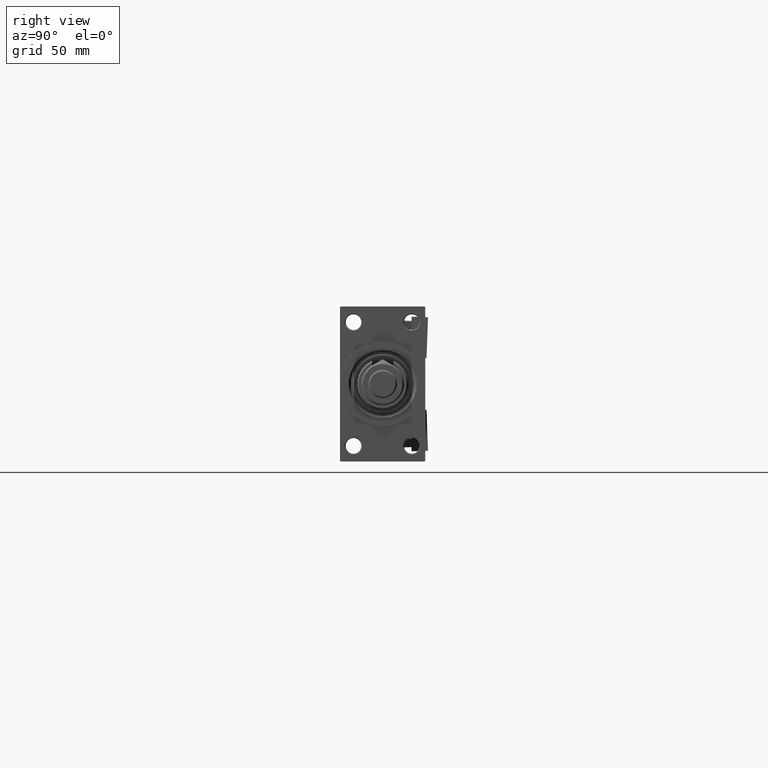
[diagram: clean part render]
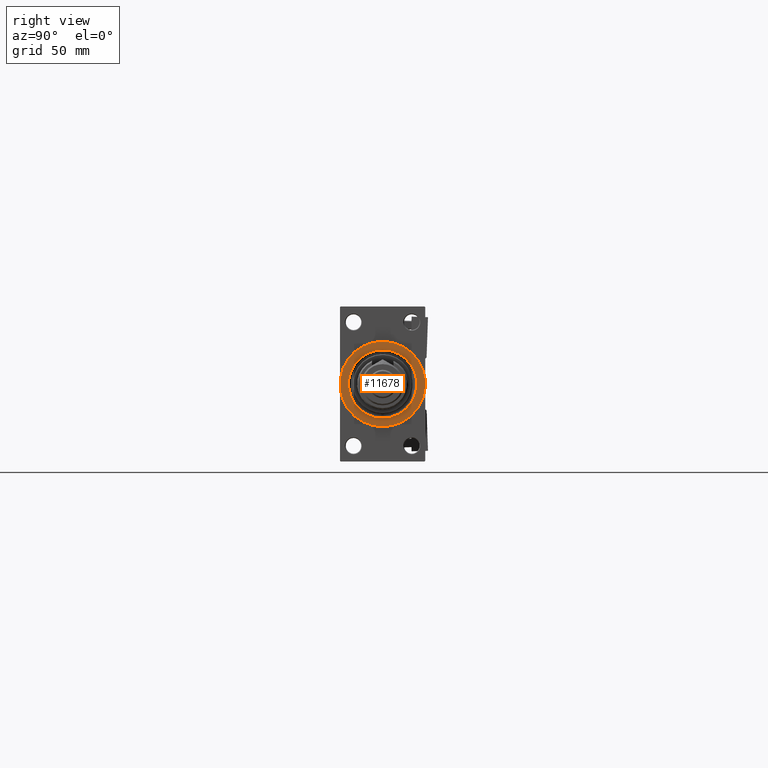
[diagram: same view with one face highlighted and labeled with its STEP entity id]
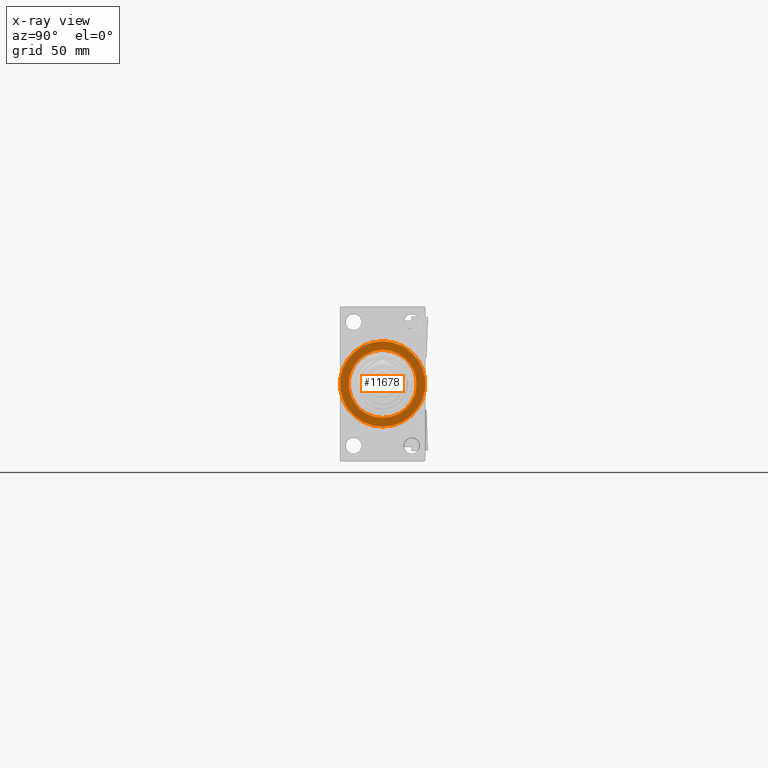
[diagram: x-ray of the same camera — body ghosted, the highlighted face saturated]
A machine part, right view. The second image highlights one B-rep face of the part: STEP entity #11678.
The next image is the same camera in x-ray: the body ghosted, the highlighted face saturated — about 0% of this face is hidden behind the body in this view.
In plain terms, the highlighted planar face has unit normal (1, 0, 0).
Its self-contained STEP definition (entity closure, byte-faithful):
#404 = DIRECTION ( 'NONE',  ( 0.000000000000000000, 0.000000000000000000, -1.000000000000000000 ) ) ;
#1009 = CIRCLE ( 'NONE', #11217, 24.00000000000002487 ) ;
#2125 = AXIS2_PLACEMENT_3D ( 'NONE', #32202, #28219, #16758 ) ;
#2430 = CARTESIAN_POINT ( 'NONE',  ( 377.9999999999999432, 0.000000000000000000, 30.00000000000000000 ) ) ;
#4651 = DIRECTION ( 'NONE',  ( 1.000000000000000000, 0.000000000000000000, 0.000000000000000000 ) ) ;
#5663 = DIRECTION ( 'NONE',  ( 1.000000000000000000, 0.000000000000000000, 0.000000000000000000 ) ) ;
#5743 = EDGE_CURVE ( 'NONE', #29720, #43618, #1009, .T. ) ;
#8200 = ORIENTED_EDGE ( 'NONE', *, *, #33052, .T. ) ;
#8775 = FACE_OUTER_BOUND ( 'NONE', #12174, .T. ) ;
#10155 = EDGE_CURVE ( 'NONE', #41347, #47647, #42847, .T. ) ;
#11217 = AXIS2_PLACEMENT_3D ( 'NONE', #28442, #24699, #24444 ) ;
#11678 = ADVANCED_FACE ( 'NONE', ( #33235, #8775 ), #15982, .T. ) ;
#12081 = CIRCLE ( 'NONE', #33299, 24.00000000000002487 ) ;
#12174 = EDGE_LOOP ( 'NONE', ( #8200, #29831 ) ) ;
#15982 = PLANE ( 'NONE',  #2125 ) ;
#16758 = DIRECTION ( 'NONE',  ( 0.000000000000000000, 0.000000000000000000, -1.000000000000000000 ) ) ;
#21586 = AXIS2_PLACEMENT_3D ( 'NONE', #36812, #4651, #404 ) ;
#22214 = EDGE_CURVE ( 'NONE', #43618, #29720, #12081, .T. ) ;
#22289 = ORIENTED_EDGE ( 'NONE', *, *, #5743, .T. ) ;
#24444 = DIRECTION ( 'NONE',  ( 0.000000000000000000, 0.000000000000000000, -1.000000000000000000 ) ) ;
#24699 = DIRECTION ( 'NONE',  ( -1.000000000000000000, -0.000000000000000000, -0.000000000000000000 ) ) ;
#25317 = CARTESIAN_POINT ( 'NONE',  ( 377.9999999999999432, 3.673940397442059178E-15, -30.00000000000000000 ) ) ;
#28219 = DIRECTION ( 'NONE',  ( 1.000000000000000000, 0.000000000000000000, 0.000000000000000000 ) ) ;
#28442 = CARTESIAN_POINT ( 'NONE',  ( 377.9999999999999432, 0.000000000000000000, 0.000000000000000000 ) ) ;
#28626 = AXIS2_PLACEMENT_3D ( 'NONE', #29851, #5663, #38090 ) ;
#29720 = VERTEX_POINT ( 'NONE', #43216 ) ;
#29831 = ORIENTED_EDGE ( 'NONE', *, *, #10155, .T. ) ;
#29851 = CARTESIAN_POINT ( 'NONE',  ( 377.9999999999999432, 0.000000000000000000, 0.000000000000000000 ) ) ;
#32202 = CARTESIAN_POINT ( 'NONE',  ( 377.9999999999999432, 0.000000000000000000, 0.000000000000000000 ) ) ;
#33052 = EDGE_CURVE ( 'NONE', #47647, #41347, #45632, .T. ) ;
#33235 = FACE_BOUND ( 'NONE', #43208, .T. ) ;
#33299 = AXIS2_PLACEMENT_3D ( 'NONE', #43498, #51479, #43229 ) ;
#36812 = CARTESIAN_POINT ( 'NONE',  ( 377.9999999999999432, 0.000000000000000000, 0.000000000000000000 ) ) ;
#38090 = DIRECTION ( 'NONE',  ( 0.000000000000000000, 0.000000000000000000, -1.000000000000000000 ) ) ;
#38619 = ORIENTED_EDGE ( 'NONE', *, *, #22214, .T. ) ;
#41347 = VERTEX_POINT ( 'NONE', #25317 ) ;
#42847 = CIRCLE ( 'NONE', #21586, 30.00000000000000000 ) ;
#43208 = EDGE_LOOP ( 'NONE', ( #38619, #22289 ) ) ;
#43216 = CARTESIAN_POINT ( 'NONE',  ( 377.9999999999999432, 2.939152317953650655E-15, 24.00000000000002487 ) ) ;
#43229 = DIRECTION ( 'NONE',  ( 0.000000000000000000, 0.000000000000000000, -1.000000000000000000 ) ) ;
#43498 = CARTESIAN_POINT ( 'NONE',  ( 377.9999999999999432, 0.000000000000000000, 0.000000000000000000 ) ) ;
#43618 = VERTEX_POINT ( 'NONE', #47751 ) ;
#45632 = CIRCLE ( 'NONE', #28626, 30.00000000000000000 ) ;
#47647 = VERTEX_POINT ( 'NONE', #2430 ) ;
#47751 = CARTESIAN_POINT ( 'NONE',  ( 377.9999999999999432, 0.000000000000000000, -24.00000000000002487 ) ) ;
#51479 = DIRECTION ( 'NONE',  ( -1.000000000000000000, -0.000000000000000000, -0.000000000000000000 ) ) ;